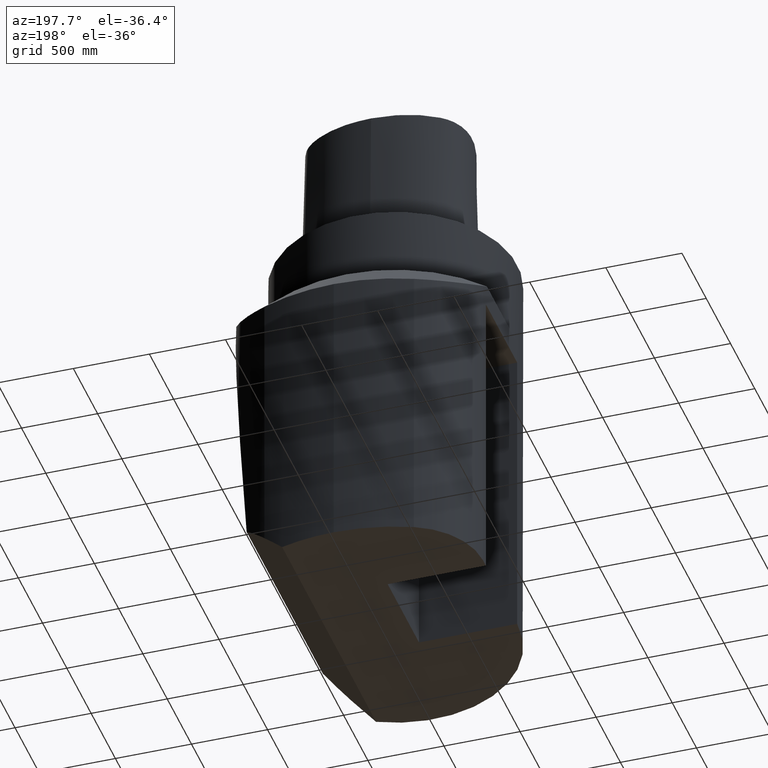
[diagram: clean part render]
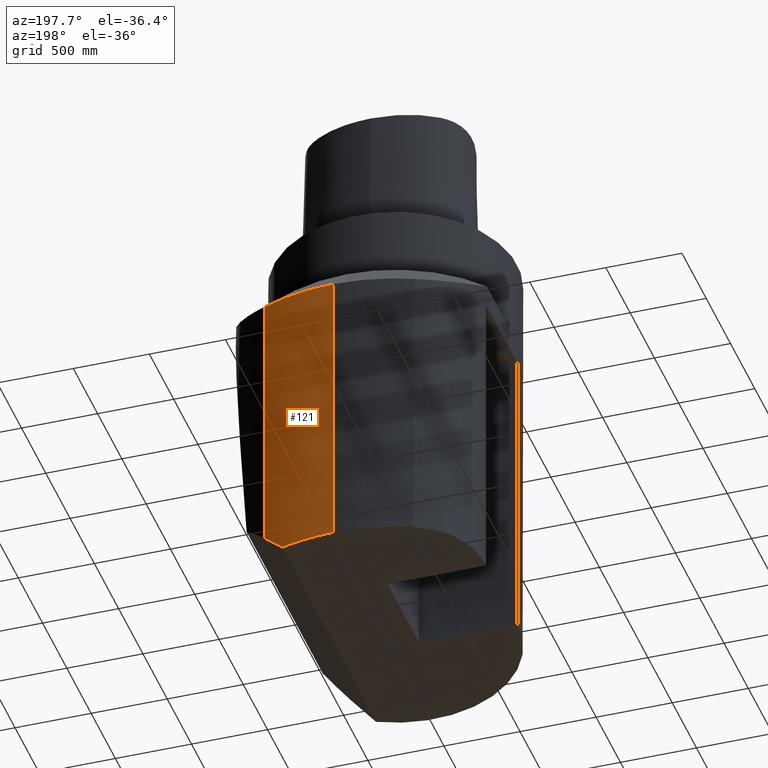
[diagram: same view with one face highlighted and labeled with its STEP entity id]
A machine part, auxiliary view. The second image highlights one B-rep face of the part: STEP entity #121.
In plain terms, the highlighted cylindrical surface (partial cylindrical patch) has radius 1270 mm, axis along (-0, 0, 1).
Its self-contained STEP definition (entity closure, byte-faithful):
#121=ADVANCED_FACE('Unnamed[1]',(#313),#314,.T.);
#136=EDGE_CURVE('Unnamed[1]',#305,#335,#336,.T.);
#147=EDGE_CURVE('Unnamed[1]',#305,#293,#351,.T.);
#174=EDGE_CURVE('Unnamed[1]',#293,#386,#387,.T.);
#184=EDGE_CURVE('Unnamed[1]',#398,#335,#399,.T.);
#225=EDGE_CURVE('Unnamed[1]',#386,#398,#449,.T.);
#293=VERTEX_POINT('',#521);
#305=VERTEX_POINT('',#552);
#313=FACE_OUTER_BOUND('',#562,.T.);
#314=CYLINDRICAL_SURFACE('',#563,50.0);
#335=VERTEX_POINT('',#595);
#336=ELLIPSE('',#596,70.710678118655,50.0);
#351=LINE('',#648,#649);
#386=VERTEX_POINT('',#731);
#387=B_SPLINE_CURVE_WITH_KNOTS('',3,(#732,#733,#734,#735,#736,#737,#738,#739,#740,#741,#742,#743,#744,#745),.UNSPECIFIED.,.F.,.F.,(4,2,2,2,2,2,4),(51.7908781094984,56.4993030721826,61.2077280348668,65.916152997551,70.6245779602351,75.3330029229193,80.0417454363844),.UNSPECIFIED.);
#398=VERTEX_POINT('',#760);
#399=CIRCLE('',#761,50.0);
#449=LINE('',#980,#981);
#521=CARTESIAN_POINT('',(19.169546318746,46.1775147707604,-33.99834373727));
#552=CARTESIAN_POINT('',(19.169546318746,46.1775147707604,-104.830453681314));
#562=EDGE_LOOP('',(#1093,#1094,#1095,#1096,#1097));
#563=AXIS2_PLACEMENT_3D('',#1098,#1099,#1100);
#595=CARTESIAN_POINT('',(13.9999999999624,47.9987399413341,-110.000000000098));
#596=AXIS2_PLACEMENT_3D('',#1116,#1117,#1118);
#648=CARTESIAN_POINT('',(19.169546318746,46.1775147707604,-224.0));
#649=VECTOR('',#1129,1.0);
#731=CARTESIAN_POINT('',(-0.00215974573172323,49.9999999533556,-33.9999999999993));
#732=CARTESIAN_POINT('',(23.6459115898771,44.052997292243,-33.9979570117273));
#733=CARTESIAN_POINT('',(22.1814966518667,44.8391810661555,-33.9980835270623));
#734=CARTESIAN_POINT('',(20.6730336621863,45.5546367378678,-33.998213847362));
#735=CARTESIAN_POINT('',(17.5934830443397,46.8304944196465,-33.9984798971886));
#736=CARTESIAN_POINT('',(16.0210177916453,47.3914671794928,-33.9986157457312));
#737=CARTESIAN_POINT('',(12.8383320599857,48.351100271922,-33.998890703415));
#738=CARTESIAN_POINT('',(11.2281103078048,48.7497563817975,-33.9990298126657));
#739=CARTESIAN_POINT('',(7.99943411484802,49.382650340007,-33.9993087412234));
#740=CARTESIAN_POINT('',(6.38081301651385,49.6169115926764,-33.9994485749278));
#741=CARTESIAN_POINT('',(3.16583398429019,49.9255241333955,-33.9997263178511));
#742=CARTESIAN_POINT('',(1.56947497584817,49.9998642271643,-33.999864227163));
#743=CARTESIAN_POINT('',(-1.56958082610766,50.0001354088223,-34.000135408821));
#744=CARTESIAN_POINT('',(-3.16605859430771,49.9260611345788,-34.0002733272821));
#745=CARTESIAN_POINT('',(-4.77367907535406,49.7720123064385,-34.000412207767));
#760=CARTESIAN_POINT('',(-0.00215974704769279,49.9999999533556,-110.000000000114));
#761=AXIS2_PLACEMENT_3D('',#1187,#1188,#1189);
#980=CARTESIAN_POINT('',(-0.00215974636336982,49.9999999533556,-224.0));
#981=VECTOR('',#1257,1.0);
#1093=ORIENTED_EDGE('',*,*,#136,.T.);
#1094=ORIENTED_EDGE('',*,*,#184,.F.);
#1095=ORIENTED_EDGE('',*,*,#225,.F.);
#1096=ORIENTED_EDGE('',*,*,#174,.F.);
#1097=ORIENTED_EDGE('',*,*,#147,.F.);
#1098=CARTESIAN_POINT('',(-0.00431947811942011,1.47064587552116E-014,-224.0));
#1099=DIRECTION('',(-1.22464679914735E-016,6.12323399573677E-017,1.0));
#1100=DIRECTION('',(3.06161699786838E-016,1.0,-6.12323399573677E-017));
#1116=CARTESIAN_POINT('',(-0.00431947811943235,2.0829428259192E-014,-124.00431947818));
#1117=DIRECTION('',(-0.70710678118655,1.73191211247099E-016,0.707106781186545));
#1118=DIRECTION('',(-0.707106781186545,1.73191211247098E-016,-0.70710678118655));
#1129=DIRECTION('',(-1.22464679914735E-016,6.12323399573677E-017,1.0));
#1187=CARTESIAN_POINT('',(-0.00431947811943407,2.16869455103468E-014,-110.000000000077));
#1188=DIRECTION('',(-1.50509126675426E-012,-6.12323399570912E-017,-1.0));
#1189=DIRECTION('',(3.06161699786838E-016,1.0,-6.1232339957552E-017));
#1257=DIRECTION('',(1.22464679914735E-016,-6.12323399573677E-017,-1.0));